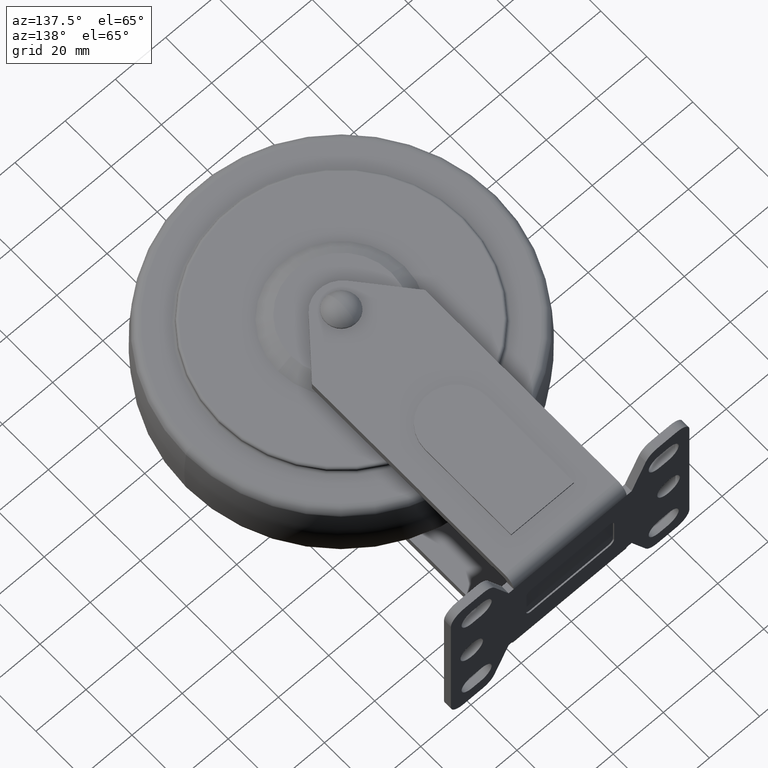
[diagram: clean part render]
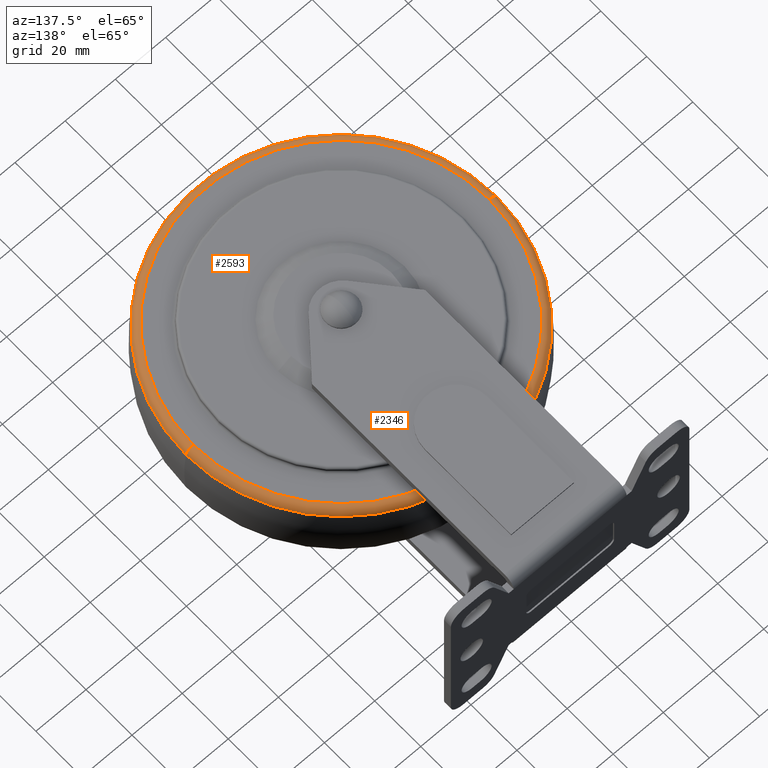
[diagram: same view with one multi-face feature highlighted, each face labeled with its STEP entity id]
A machine part, auxiliary view. The highlighted faces form ONE feature: a constant-radius fillet chain: 2 tangent blend faces with common blend radius 3 mm. The faces share edges in the B-rep.
Their STEP definitions:
[1] entity #2346 (Torus):
#133 = CARTESIAN_POINT ( 'NONE',  ( 0.000000000000000000, 0.000000000000000000, 11.08247422680411987 ) ) ;
#357 = DIRECTION ( 'NONE',  ( 0.000000000000000000, 0.000000000000000000, 1.000000000000000000 ) ) ;
#361 = EDGE_CURVE ( 'NONE', #1315, #3480, #1360, .T. ) ;
#523 = CARTESIAN_POINT ( 'NONE',  ( 0.000000000000000000, 0.000000000000000000, 13.74999999999999467 ) ) ;
#584 = DIRECTION ( 'NONE',  ( 1.224646799147353207E-16, 1.000000000000000000, -0.000000000000000000 ) ) ;
#607 = CARTESIAN_POINT ( 'NONE',  ( -58.90247662793731109, 7.213472946425520870E-15, 10.74999999999999645 ) ) ;
#667 = AXIS2_PLACEMENT_3D ( 'NONE', #523, #357, #1049 ) ;
#737 = CIRCLE ( 'NONE', #4851, 3.000000000000000000 ) ;
#820 = DIRECTION ( 'NONE',  ( -0.000000000000000000, -0.000000000000000000, -1.000000000000000000 ) ) ;
#826 = DIRECTION ( 'NONE',  ( 1.000000000000000000, 0.000000000000000000, 0.000000000000000000 ) ) ;
#1049 = DIRECTION ( 'NONE',  ( 1.000000000000000000, 0.000000000000000000, 0.000000000000000000 ) ) ;
#1266 = DIRECTION ( 'NONE',  ( 0.000000000000000000, 0.000000000000000000, -1.000000000000000000 ) ) ;
#1315 = VERTEX_POINT ( 'NONE', #1553 ) ;
#1360 = CIRCLE ( 'NONE', #1976, 3.000000000000002665 ) ;
#1434 = EDGE_CURVE ( 'NONE', #3655, #2130, #737, .T. ) ;
#1444 = ORIENTED_EDGE ( 'NONE', *, *, #1434, .F. ) ;
#1519 = AXIS2_PLACEMENT_3D ( 'NONE', #1569, #1641, #826 ) ;
#1553 = CARTESIAN_POINT ( 'NONE',  ( -61.88399652364670800, 0.000000000000000000, 11.08247422680411987 ) ) ;
#1569 = CARTESIAN_POINT ( 'NONE',  ( 0.000000000000000000, 0.000000000000000000, 10.74999999999999645 ) ) ;
#1641 = DIRECTION ( 'NONE',  ( 0.000000000000000000, 0.000000000000000000, 1.000000000000000000 ) ) ;
#1803 = EDGE_CURVE ( 'NONE', #1315, #3655, #2240, .T. ) ;
#1976 = AXIS2_PLACEMENT_3D ( 'NONE', #607, #584, #2088 ) ;
#2026 = EDGE_CURVE ( 'NONE', #2130, #3480, #3588, .T. ) ;
#2088 = DIRECTION ( 'NONE',  ( -1.000000000000000000, 1.224646799147354440E-16, 0.000000000000000000 ) ) ;
#2124 = CARTESIAN_POINT ( 'NONE',  ( 61.88399652364670800, 7.578603826112987115E-15, 11.08247422680411987 ) ) ;
#2130 = VERTEX_POINT ( 'NONE', #2624 ) ;
#2240 = CIRCLE ( 'NONE', #4463, 61.88399652364670800 ) ;
#2346 = ADVANCED_FACE ( 'NONE', ( #3132 ), #4133, .T. ) ;
#2624 = CARTESIAN_POINT ( 'NONE',  ( 58.90247662793731109, 0.000000000000000000, 13.74999999999999467 ) ) ;
#2723 = ORIENTED_EDGE ( 'NONE', *, *, #361, .T. ) ;
#2745 = ORIENTED_EDGE ( 'NONE', *, *, #2026, .F. ) ;
#2793 = EDGE_LOOP ( 'NONE', ( #4007, #2723, #2745, #1444 ) ) ;
#2931 = CARTESIAN_POINT ( 'NONE',  ( -58.90247662793731109, 7.396038386269254782E-15, 13.74999999999999467 ) ) ;
#3132 = FACE_OUTER_BOUND ( 'NONE', #2793, .T. ) ;
#3480 = VERTEX_POINT ( 'NONE', #2931 ) ;
#3588 = CIRCLE ( 'NONE', #667, 58.90247662793731109 ) ;
#3655 = VERTEX_POINT ( 'NONE', #2124 ) ;
#3937 = CARTESIAN_POINT ( 'NONE',  ( 58.90247662793731109, 0.000000000000000000, 10.74999999999999645 ) ) ;
#4007 = ORIENTED_EDGE ( 'NONE', *, *, #1803, .F. ) ;
#4133 = TOROIDAL_SURFACE ( 'NONE', #1519, 58.90247662793731109, 3.000000000000000000 ) ;
#4217 = DIRECTION ( 'NONE',  ( -1.000000000000000000, 0.000000000000000000, 0.000000000000000000 ) ) ;
#4312 = DIRECTION ( 'NONE',  ( 0.000000000000000000, -1.000000000000000000, 0.000000000000000000 ) ) ;
#4463 = AXIS2_PLACEMENT_3D ( 'NONE', #133, #820, #4217 ) ;
#4851 = AXIS2_PLACEMENT_3D ( 'NONE', #3937, #4312, #1266 ) ;
[2] entity #2593 (Torus):
#361 = EDGE_CURVE ( 'NONE', #1315, #3480, #1360, .T. ) ;
#584 = DIRECTION ( 'NONE',  ( 1.224646799147353207E-16, 1.000000000000000000, -0.000000000000000000 ) ) ;
#607 = CARTESIAN_POINT ( 'NONE',  ( -58.90247662793731109, 7.213472946425520870E-15, 10.74999999999999645 ) ) ;
#737 = CIRCLE ( 'NONE', #4851, 3.000000000000000000 ) ;
#768 = DIRECTION ( 'NONE',  ( 0.000000000000000000, 0.000000000000000000, 1.000000000000000000 ) ) ;
#850 = AXIS2_PLACEMENT_3D ( 'NONE', #3355, #768, #1790 ) ;
#1016 = CARTESIAN_POINT ( 'NONE',  ( 0.000000000000000000, 0.000000000000000000, 10.74999999999999645 ) ) ;
#1266 = DIRECTION ( 'NONE',  ( 0.000000000000000000, 0.000000000000000000, -1.000000000000000000 ) ) ;
#1315 = VERTEX_POINT ( 'NONE', #1553 ) ;
#1360 = CIRCLE ( 'NONE', #1976, 3.000000000000002665 ) ;
#1434 = EDGE_CURVE ( 'NONE', #3655, #2130, #737, .T. ) ;
#1509 = DIRECTION ( 'NONE',  ( -1.000000000000000000, 0.000000000000000000, 0.000000000000000000 ) ) ;
#1553 = CARTESIAN_POINT ( 'NONE',  ( -61.88399652364670800, 0.000000000000000000, 11.08247422680411987 ) ) ;
#1708 = FACE_OUTER_BOUND ( 'NONE', #2138, .T. ) ;
#1788 = DIRECTION ( 'NONE',  ( -0.000000000000000000, -0.000000000000000000, -1.000000000000000000 ) ) ;
#1790 = DIRECTION ( 'NONE',  ( 1.000000000000000000, 0.000000000000000000, 0.000000000000000000 ) ) ;
#1976 = AXIS2_PLACEMENT_3D ( 'NONE', #607, #584, #2088 ) ;
#2001 = CIRCLE ( 'NONE', #2881, 61.88399652364670800 ) ;
#2088 = DIRECTION ( 'NONE',  ( -1.000000000000000000, 1.224646799147354440E-16, 0.000000000000000000 ) ) ;
#2120 = DIRECTION ( 'NONE',  ( 1.000000000000000000, 0.000000000000000000, 0.000000000000000000 ) ) ;
#2124 = CARTESIAN_POINT ( 'NONE',  ( 61.88399652364670800, 7.578603826112987115E-15, 11.08247422680411987 ) ) ;
#2130 = VERTEX_POINT ( 'NONE', #2624 ) ;
#2138 = EDGE_LOOP ( 'NONE', ( #2520, #4239, #4841, #4427 ) ) ;
#2520 = ORIENTED_EDGE ( 'NONE', *, *, #361, .F. ) ;
#2593 = ADVANCED_FACE ( 'NONE', ( #1708 ), #3022, .T. ) ;
#2602 = CARTESIAN_POINT ( 'NONE',  ( 0.000000000000000000, 0.000000000000000000, 11.08247422680411987 ) ) ;
#2624 = CARTESIAN_POINT ( 'NONE',  ( 58.90247662793731109, 0.000000000000000000, 13.74999999999999467 ) ) ;
#2669 = CIRCLE ( 'NONE', #850, 58.90247662793731109 ) ;
#2881 = AXIS2_PLACEMENT_3D ( 'NONE', #2602, #1788, #1509 ) ;
#2931 = CARTESIAN_POINT ( 'NONE',  ( -58.90247662793731109, 7.396038386269254782E-15, 13.74999999999999467 ) ) ;
#3022 = TOROIDAL_SURFACE ( 'NONE', #3492, 58.90247662793731109, 3.000000000000000000 ) ;
#3355 = CARTESIAN_POINT ( 'NONE',  ( 0.000000000000000000, 0.000000000000000000, 13.74999999999999467 ) ) ;
#3380 = EDGE_CURVE ( 'NONE', #3655, #1315, #2001, .T. ) ;
#3480 = VERTEX_POINT ( 'NONE', #2931 ) ;
#3492 = AXIS2_PLACEMENT_3D ( 'NONE', #1016, #3638, #2120 ) ;
#3638 = DIRECTION ( 'NONE',  ( 0.000000000000000000, 0.000000000000000000, 1.000000000000000000 ) ) ;
#3655 = VERTEX_POINT ( 'NONE', #2124 ) ;
#3937 = CARTESIAN_POINT ( 'NONE',  ( 58.90247662793731109, 0.000000000000000000, 10.74999999999999645 ) ) ;
#4239 = ORIENTED_EDGE ( 'NONE', *, *, #3380, .F. ) ;
#4312 = DIRECTION ( 'NONE',  ( 0.000000000000000000, -1.000000000000000000, 0.000000000000000000 ) ) ;
#4427 = ORIENTED_EDGE ( 'NONE', *, *, #4588, .F. ) ;
#4588 = EDGE_CURVE ( 'NONE', #3480, #2130, #2669, .T. ) ;
#4841 = ORIENTED_EDGE ( 'NONE', *, *, #1434, .T. ) ;
#4851 = AXIS2_PLACEMENT_3D ( 'NONE', #3937, #4312, #1266 ) ;